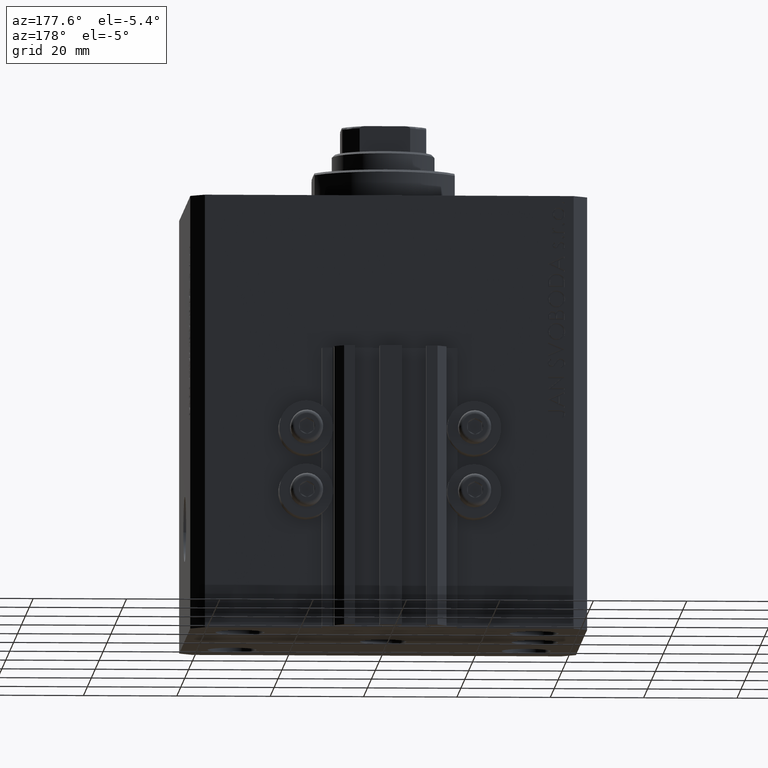
[diagram: clean part render]
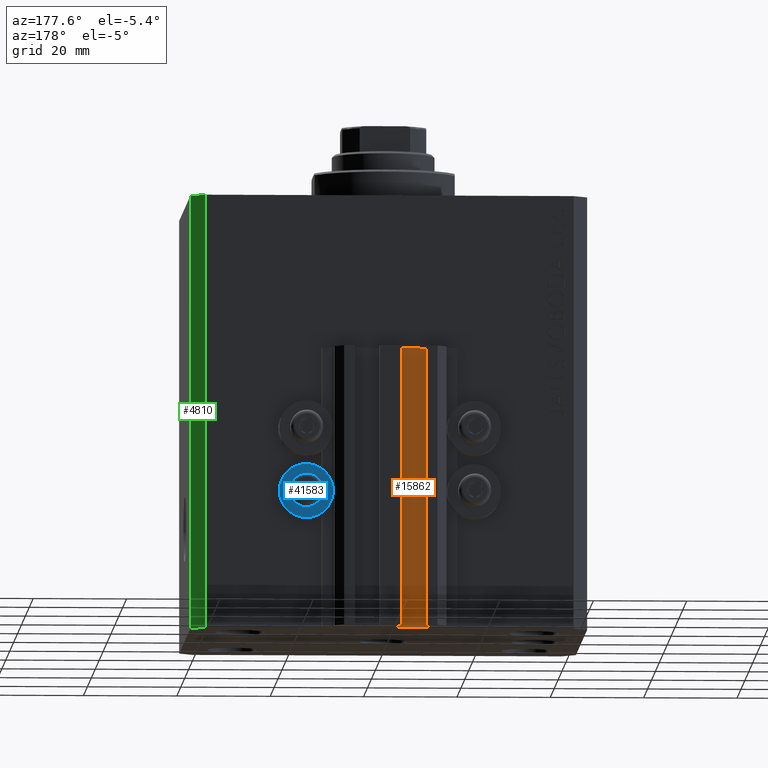
[diagram: same view with three faces highlighted in distinct colors, each labeled with its STEP entity id]
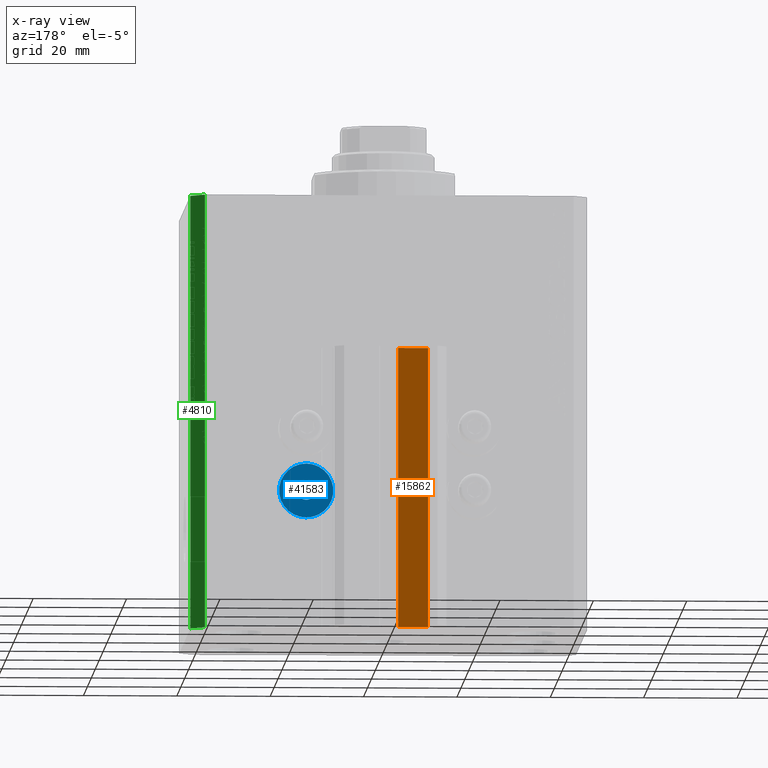
[diagram: x-ray of the same camera — body ghosted, the three highlighted faces saturated]
A machine part, auxiliary view with three faces highlighted in distinct colors.
The next image is the same camera in x-ray (body ghosted, the three faces saturated) — at least one of them is partly hidden behind the body in this view.
Their STEP definitions:

[orange] entity #15862 — the highlighted planar face has unit normal (0, 1, 0).
#123 = DIRECTION ( 'NONE',  ( 0.000000000000000000, 1.000000000000000000, -0.000000000000000000 ) ) ;
#200 = VECTOR ( 'NONE', #15160, 1000.000000000000000 ) ;
#590 = DIRECTION ( 'NONE',  ( 0.000000000000000000, 0.000000000000000000, 1.000000000000000000 ) ) ;
#3704 = AXIS2_PLACEMENT_3D ( 'NONE', #14426, #123, #590 ) ;
#4879 = VERTEX_POINT ( 'NONE', #44099 ) ;
#5378 = ORIENTED_EDGE ( 'NONE', *, *, #16360, .T. ) ;
#5621 = ORIENTED_EDGE ( 'NONE', *, *, #32488, .F. ) ;
#7026 = FACE_OUTER_BOUND ( 'NONE', #28199, .T. ) ;
#7735 = PLANE ( 'NONE',  #3704 ) ;
#8565 = LINE ( 'NONE', #27204, #29886 ) ;
#10445 = CARTESIAN_POINT ( 'NONE',  ( -8.199999999999997513, 33.50000000000000000, -93.00000000000000000 ) ) ;
#11944 = VERTEX_POINT ( 'NONE', #23794 ) ;
#13538 = EDGE_CURVE ( 'NONE', #37025, #4879, #25761, .T. ) ;
#14028 = VERTEX_POINT ( 'NONE', #34491 ) ;
#14426 = CARTESIAN_POINT ( 'NONE',  ( -1.800000000000000933, 33.50000000000000000, -93.00000000000000000 ) ) ;
#15160 = DIRECTION ( 'NONE',  ( -1.000000000000000000, 0.000000000000000000, 0.000000000000000000 ) ) ;
#15862 = ADVANCED_FACE ( 'NONE', ( #7026 ), #7735, .T. ) ;
#16016 = VECTOR ( 'NONE', #35772, 1000.000000000000000 ) ;
#16360 = EDGE_CURVE ( 'NONE', #4879, #11944, #46980, .T. ) ;
#17651 = LINE ( 'NONE', #33325, #200 ) ;
#21123 = ORIENTED_EDGE ( 'NONE', *, *, #13538, .T. ) ;
#23794 = CARTESIAN_POINT ( 'NONE',  ( -8.199999999999997513, 33.50000000000000000, -33.00000000000000000 ) ) ;
#25351 = CARTESIAN_POINT ( 'NONE',  ( -1.800000000000000933, 33.50000000000000000, -93.00000000000000000 ) ) ;
#25761 = LINE ( 'NONE', #31585, #33379 ) ;
#27204 = CARTESIAN_POINT ( 'NONE',  ( -1.800000000000000933, 33.50000000000000000, -93.00000000000000000 ) ) ;
#28199 = EDGE_LOOP ( 'NONE', ( #45295, #5621, #21123, #5378 ) ) ;
#29886 = VECTOR ( 'NONE', #34597, 1000.000000000000000 ) ;
#31585 = CARTESIAN_POINT ( 'NONE',  ( -1.800000000000000933, 33.50000000000000000, -93.00000000000000000 ) ) ;
#32488 = EDGE_CURVE ( 'NONE', #37025, #14028, #8565, .T. ) ;
#33325 = CARTESIAN_POINT ( 'NONE',  ( -1.800000000000000933, 33.50000000000000000, -33.00000000000000000 ) ) ;
#33379 = VECTOR ( 'NONE', #42562, 1000.000000000000000 ) ;
#34028 = EDGE_CURVE ( 'NONE', #14028, #11944, #17651, .T. ) ;
#34491 = CARTESIAN_POINT ( 'NONE',  ( -1.800000000000000933, 33.50000000000000000, -33.00000000000000000 ) ) ;
#34597 = DIRECTION ( 'NONE',  ( 0.000000000000000000, 0.000000000000000000, 1.000000000000000000 ) ) ;
#35772 = DIRECTION ( 'NONE',  ( 0.000000000000000000, 0.000000000000000000, 1.000000000000000000 ) ) ;
#37025 = VERTEX_POINT ( 'NONE', #25351 ) ;
#42562 = DIRECTION ( 'NONE',  ( -1.000000000000000000, 0.000000000000000000, 0.000000000000000000 ) ) ;
#44099 = CARTESIAN_POINT ( 'NONE',  ( -8.199999999999997513, 33.50000000000000000, -93.00000000000000000 ) ) ;
#45295 = ORIENTED_EDGE ( 'NONE', *, *, #34028, .F. ) ;
#46980 = LINE ( 'NONE', #10445, #16016 ) ;

[blue] entity #41583 — the highlighted planar face has unit normal (0, -1, 0).
#987 = DIRECTION ( 'NONE',  ( 0.000000000000000000, 1.000000000000000000, 0.000000000000000000 ) ) ;
#1127 = CARTESIAN_POINT ( 'NONE',  ( 18.00000000000000355, 36.49999999996099120, -64.00000000000000000 ) ) ;
#1230 = AXIS2_PLACEMENT_3D ( 'NONE', #2496, #9421, #38785 ) ;
#1398 = CARTESIAN_POINT ( 'NONE',  ( 18.00000000000000355, 36.49999999996099120, -69.79999999999999716 ) ) ;
#2266 = FACE_OUTER_BOUND ( 'NONE', #24392, .T. ) ;
#2496 = CARTESIAN_POINT ( 'NONE',  ( 12.20000000000000284, 36.49999999996099120, -64.00000000000000000 ) ) ;
#2636 = VERTEX_POINT ( 'NONE', #1398 ) ;
#5392 = DIRECTION ( 'NONE',  ( 0.000000000000000000, 1.000000000000000000, 0.000000000000000000 ) ) ;
#8736 = EDGE_LOOP ( 'NONE', ( #45511, #9464 ) ) ;
#9421 = DIRECTION ( 'NONE',  ( 0.000000000000000000, -1.000000000000000000, 0.000000000000000000 ) ) ;
#9464 = ORIENTED_EDGE ( 'NONE', *, *, #28338, .F. ) ;
#11519 = VERTEX_POINT ( 'NONE', #44646 ) ;
#13173 = CARTESIAN_POINT ( 'NONE',  ( 18.00000000000000355, 36.49999999996099120, -62.00000000000000000 ) ) ;
#13298 = AXIS2_PLACEMENT_3D ( 'NONE', #1127, #5392, #26899 ) ;
#13464 = CARTESIAN_POINT ( 'NONE',  ( 18.00000000000000355, 36.49999999996099120, -64.00000000000000000 ) ) ;
#13530 = VERTEX_POINT ( 'NONE', #13173 ) ;
#16739 = EDGE_CURVE ( 'NONE', #2636, #39941, #41205, .T. ) ;
#16822 = DIRECTION ( 'NONE',  ( 0.000000000000000000, 1.000000000000000000, 0.000000000000000000 ) ) ;
#17587 = CARTESIAN_POINT ( 'NONE',  ( 18.00000000000000355, 36.49999999996099120, -58.20000000000000284 ) ) ;
#18036 = DIRECTION ( 'NONE',  ( 0.000000000000000000, 1.000000000000000000, 0.000000000000000000 ) ) ;
#19440 = ORIENTED_EDGE ( 'NONE', *, *, #40396, .T. ) ;
#19930 = DIRECTION ( 'NONE',  ( 0.000000000000000000, 0.000000000000000000, -1.000000000000000000 ) ) ;
#22469 = CARTESIAN_POINT ( 'NONE',  ( 18.00000000000000355, 36.49999999996099120, -64.00000000000000000 ) ) ;
#24392 = EDGE_LOOP ( 'NONE', ( #24564, #19440 ) ) ;
#24564 = ORIENTED_EDGE ( 'NONE', *, *, #16739, .T. ) ;
#26899 = DIRECTION ( 'NONE',  ( 0.000000000000000000, 0.000000000000000000, -1.000000000000000000 ) ) ;
#27091 = CIRCLE ( 'NONE', #33179, 5.799999999999999822 ) ;
#28338 = EDGE_CURVE ( 'NONE', #11519, #13530, #36198, .T. ) ;
#29256 = DIRECTION ( 'NONE',  ( 0.000000000000000000, 0.000000000000000000, -1.000000000000000000 ) ) ;
#31686 = CIRCLE ( 'NONE', #45419, 2.000000000000001776 ) ;
#33179 = AXIS2_PLACEMENT_3D ( 'NONE', #22469, #987, #44911 ) ;
#36198 = CIRCLE ( 'NONE', #13298, 2.000000000000001776 ) ;
#38551 = PLANE ( 'NONE',  #1230 ) ;
#38785 = DIRECTION ( 'NONE',  ( -0.000000000000000000, 0.000000000000000000, 1.000000000000000000 ) ) ;
#38920 = AXIS2_PLACEMENT_3D ( 'NONE', #40452, #18036, #29256 ) ;
#39941 = VERTEX_POINT ( 'NONE', #17587 ) ;
#40396 = EDGE_CURVE ( 'NONE', #39941, #2636, #27091, .T. ) ;
#40452 = CARTESIAN_POINT ( 'NONE',  ( 18.00000000000000355, 36.49999999996099120, -64.00000000000000000 ) ) ;
#41205 = CIRCLE ( 'NONE', #38920, 5.799999999999999822 ) ;
#41583 = ADVANCED_FACE ( 'NONE', ( #41902, #2266 ), #38551, .F. ) ;
#41902 = FACE_BOUND ( 'NONE', #8736, .T. ) ;
#44646 = CARTESIAN_POINT ( 'NONE',  ( 18.00000000000000355, 36.49999999996099120, -66.00000000000000000 ) ) ;
#44911 = DIRECTION ( 'NONE',  ( 0.000000000000000000, 0.000000000000000000, -1.000000000000000000 ) ) ;
#45229 = EDGE_CURVE ( 'NONE', #13530, #11519, #31686, .T. ) ;
#45419 = AXIS2_PLACEMENT_3D ( 'NONE', #13464, #16822, #19930 ) ;
#45511 = ORIENTED_EDGE ( 'NONE', *, *, #45229, .F. ) ;

[green] entity #4810 — the highlighted planar face has unit normal (0.7071, 0.7071, 0).
#245 = VECTOR ( 'NONE', #3135, 1000.000000000000114 ) ;
#416 = DIRECTION ( 'NONE',  ( 0.7071067811865585639, 0.7071067811865365815, -0.000000000000000000 ) ) ;
#886 = CARTESIAN_POINT ( 'NONE',  ( 39.50000000000056843, 31.49999999999999289, -93.00000000000000000 ) ) ;
#3135 = DIRECTION ( 'NONE',  ( -0.7071067811865364705, 0.7071067811865584529, 0.000000000000000000 ) ) ;
#3363 = CARTESIAN_POINT ( 'NONE',  ( 42.50000000000051870, 28.49999999999995381, -93.00000000000000000 ) ) ;
#3757 = LINE ( 'NONE', #886, #38476 ) ;
#3966 = ORIENTED_EDGE ( 'NONE', *, *, #43041, .F. ) ;
#3985 = PLANE ( 'NONE',  #44679 ) ;
#4751 = DIRECTION ( 'NONE',  ( 0.000000000000000000, 0.000000000000000000, 1.000000000000000000 ) ) ;
#4810 = ADVANCED_FACE ( 'NONE', ( #15183 ), #3985, .T. ) ;
#10378 = VECTOR ( 'NONE', #4751, 1000.000000000000000 ) ;
#10900 = DIRECTION ( 'NONE',  ( -0.7071067811865364705, 0.7071067811865584529, 0.000000000000000000 ) ) ;
#11910 = LINE ( 'NONE', #44633, #10378 ) ;
#15183 = FACE_OUTER_BOUND ( 'NONE', #45779, .T. ) ;
#15437 = ORIENTED_EDGE ( 'NONE', *, *, #28168, .T. ) ;
#17894 = LINE ( 'NONE', #28654, #38593 ) ;
#18095 = DIRECTION ( 'NONE',  ( 0.000000000000000000, 0.000000000000000000, 1.000000000000000000 ) ) ;
#18454 = ORIENTED_EDGE ( 'NONE', *, *, #45837, .F. ) ;
#19015 = CARTESIAN_POINT ( 'NONE',  ( 42.50000000000051870, 28.49999999999995381, -93.00000000000000000 ) ) ;
#22304 = VERTEX_POINT ( 'NONE', #44331 ) ;
#22624 = VERTEX_POINT ( 'NONE', #27075 ) ;
#22900 = VERTEX_POINT ( 'NONE', #27970 ) ;
#23701 = EDGE_CURVE ( 'NONE', #38986, #22900, #35850, .T. ) ;
#27075 = CARTESIAN_POINT ( 'NONE',  ( 39.50000000000056843, 31.49999999999999289, 0.000000000000000000 ) ) ;
#27970 = CARTESIAN_POINT ( 'NONE',  ( 39.50000000000056843, 31.49999999999999289, -93.00000000000000000 ) ) ;
#28168 = EDGE_CURVE ( 'NONE', #22900, #22624, #3757, .T. ) ;
#28654 = CARTESIAN_POINT ( 'NONE',  ( 42.50000000000051870, 28.49999999999995381, 0.000000000000000000 ) ) ;
#33809 = ORIENTED_EDGE ( 'NONE', *, *, #23701, .T. ) ;
#35850 = LINE ( 'NONE', #3363, #245 ) ;
#38476 = VECTOR ( 'NONE', #18095, 1000.000000000000000 ) ;
#38593 = VECTOR ( 'NONE', #39620, 1000.000000000000114 ) ;
#38986 = VERTEX_POINT ( 'NONE', #43079 ) ;
#39620 = DIRECTION ( 'NONE',  ( -0.7071067811865364705, 0.7071067811865584529, 0.000000000000000000 ) ) ;
#43041 = EDGE_CURVE ( 'NONE', #38986, #22304, #11910, .T. ) ;
#43079 = CARTESIAN_POINT ( 'NONE',  ( 42.50000000000051870, 28.49999999999995381, -93.00000000000000000 ) ) ;
#44331 = CARTESIAN_POINT ( 'NONE',  ( 42.50000000000051870, 28.49999999999995381, 0.000000000000000000 ) ) ;
#44633 = CARTESIAN_POINT ( 'NONE',  ( 42.50000000000051870, 28.49999999999995381, -93.00000000000000000 ) ) ;
#44679 = AXIS2_PLACEMENT_3D ( 'NONE', #19015, #416, #10900 ) ;
#45779 = EDGE_LOOP ( 'NONE', ( #18454, #3966, #33809, #15437 ) ) ;
#45837 = EDGE_CURVE ( 'NONE', #22304, #22624, #17894, .T. ) ;